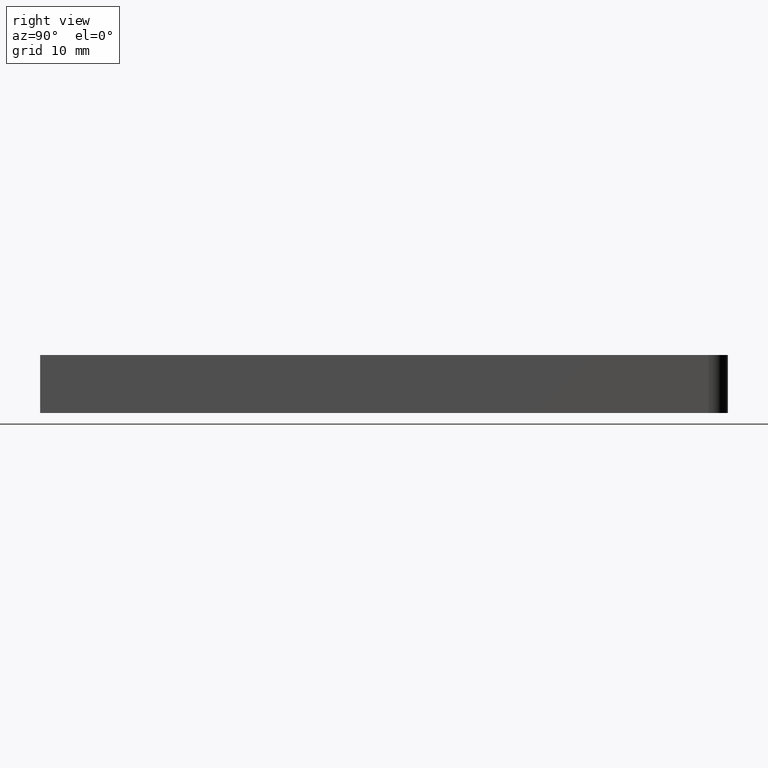
[diagram: clean part render]
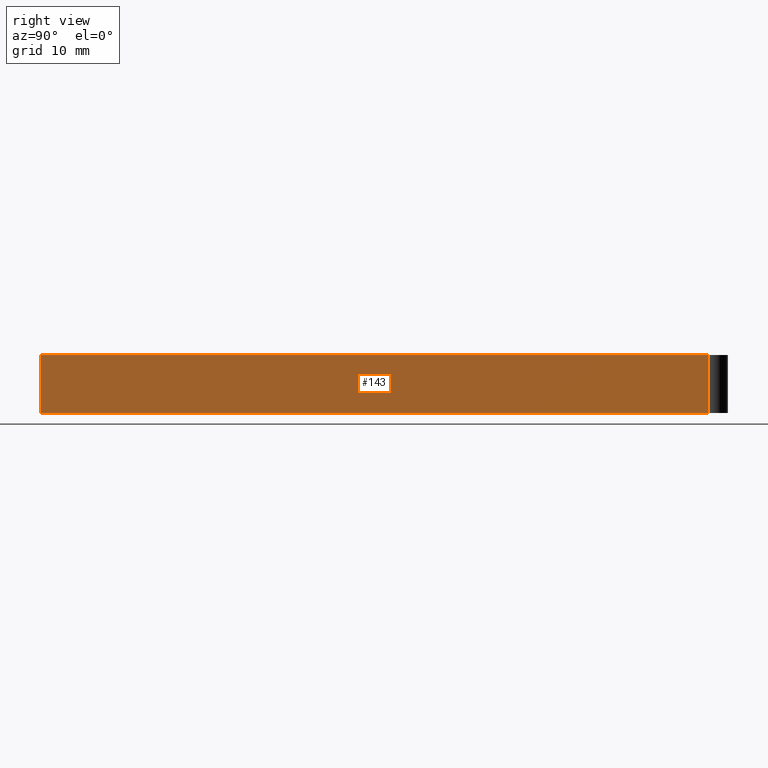
[diagram: same view with one face highlighted and labeled with its STEP entity id]
A machine part, right view. The second image highlights one B-rep face of the part: STEP entity #143.
In plain terms, the highlighted planar face has unit normal (1, 0, 0).
Its self-contained STEP definition (entity closure, byte-faithful):
#23=FACE_OUTER_BOUND('',#31,.T.);
#31=EDGE_LOOP('',(#118,#119,#120,#121));
#38=LINE('',#222,#52);
#48=LINE('',#249,#62);
#49=LINE('',#252,#63);
#50=LINE('',#253,#64);
#52=VECTOR('',#182,10.);
#62=VECTOR('',#208,10.);
#63=VECTOR('',#211,10.);
#64=VECTOR('',#212,10.);
#66=VERTEX_POINT('',#220);
#67=VERTEX_POINT('',#221);
#76=VERTEX_POINT('',#247);
#77=VERTEX_POINT('',#251);
#78=EDGE_CURVE('',#66,#67,#38,.T.);
#92=EDGE_CURVE('',#67,#76,#48,.T.);
#93=EDGE_CURVE('',#76,#77,#49,.T.);
#94=EDGE_CURVE('',#66,#77,#50,.T.);
#118=ORIENTED_EDGE('',*,*,#93,.T.);
#119=ORIENTED_EDGE('',*,*,#94,.F.);
#120=ORIENTED_EDGE('',*,*,#78,.T.);
#121=ORIENTED_EDGE('',*,*,#92,.T.);
#135=PLANE('',#175);
#143=ADVANCED_FACE('',(#23),#135,.T.);
#175=AXIS2_PLACEMENT_3D('',#250,#209,#210);
#182=DIRECTION('',(-1.93082265152201E-16,1.,0.));
#208=DIRECTION('',(0.,0.,1.));
#209=DIRECTION('center_axis',(1.,1.93082265152201E-16,0.));
#210=DIRECTION('ref_axis',(0.,0.,-1.));
#211=DIRECTION('',(1.93082265152201E-16,-1.,0.));
#212=DIRECTION('',(0.,0.,1.));
#220=CARTESIAN_POINT('',(12.5,-35.5,-3.));
#221=CARTESIAN_POINT('',(12.5,33.5,-3.));
#222=CARTESIAN_POINT('',(12.5,-35.5,-3.));
#247=CARTESIAN_POINT('',(12.5,33.5,3.));
#249=CARTESIAN_POINT('',(12.5,33.5,0.));
#250=CARTESIAN_POINT('Origin',(12.5,33.5,0.));
#251=CARTESIAN_POINT('',(12.5,-35.5,3.));
#252=CARTESIAN_POINT('',(12.5,-35.5,3.));
#253=CARTESIAN_POINT('',(12.5,-35.5,0.));